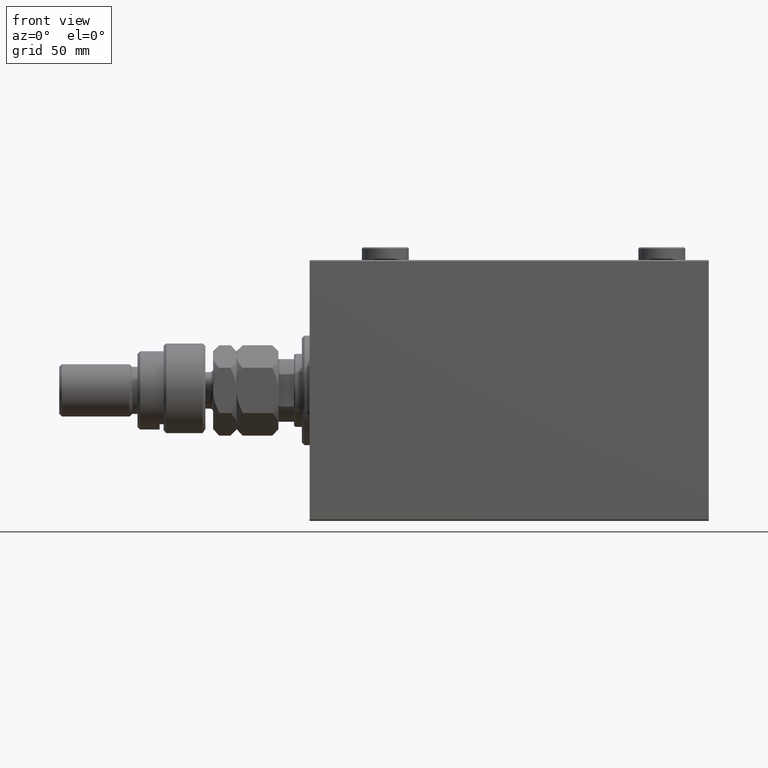
[diagram: clean part render]
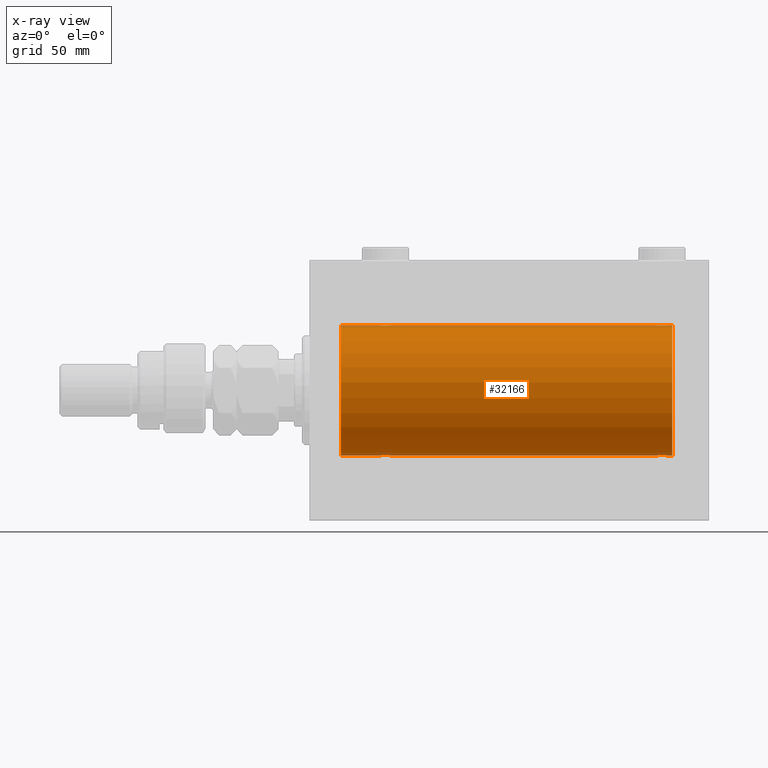
[diagram: x-ray — body ghosted, one internal face saturated and labeled with its STEP entity id]
A machine part, front view, then the same camera in x-ray: the body is ghosted and one INTERNAL B-rep face — a face not visible from any outside direction — is saturated and labeled: STEP entity #32166.
In plain terms, the highlighted cylindrical surface (partial cylindrical patch) has radius 25 mm, axis along (-1, -0, -0).
Its self-contained STEP definition (entity closure, byte-faithful):
#566 = ORIENTED_EDGE ( 'NONE', *, *, #18743, .F. ) ;
#848 = CARTESIAN_POINT ( 'NONE',  ( 133.8927615416158972, -2.247417070759893498, -24.89885693081946982 ) ) ;
#955 = CARTESIAN_POINT ( 'NONE',  ( 134.6705231988572962, -2.483544361357268304, 24.87635491893501793 ) ) ;
#1142 = CARTESIAN_POINT ( 'NONE',  ( 31.50000000000000000, 3.061616978460191625E-15, -25.00000000000000000 ) ) ;
#1177 = VERTEX_POINT ( 'NONE', #41109 ) ;
#1447 = CARTESIAN_POINT ( 'NONE',  ( 30.88412382786471611, -1.651251241585095508, -24.94567559498348785 ) ) ;
#1655 = CARTESIAN_POINT ( 'NONE',  ( 26.50000000000000355, -1.828402720252098442E-15, -25.00000000000000000 ) ) ;
#1940 = CARTESIAN_POINT ( 'NONE',  ( 30.11036796508864555, -2.245863995402895164, -24.89899750494197406 ) ) ;
#2170 = CARTESIAN_POINT ( 'NONE',  ( 136.6512113355911708, -1.884161199660621344, 24.92916496727982789 ) ) ;
#2178 = CARTESIAN_POINT ( 'NONE',  ( 26.50000000000000355, -1.828402720252098442E-15, -25.00000000000000000 ) ) ;
#2349 = CARTESIAN_POINT ( 'NONE',  ( 26.75239748980449050, -1.106703319666882956, 24.97594585958023572 ) ) ;
#2592 = CARTESIAN_POINT ( 'NONE',  ( 28.83293504821939734, -2.499872792855082793, 24.87469871246083031 ) ) ;
#2801 = CARTESIAN_POINT ( 'NONE',  ( 139.0000000000000000, 3.061616997868383043E-15, -25.00000000000000000 ) ) ;
#2831 = LINE ( 'NONE', #21580, #39643 ) ;
#2834 = CARTESIAN_POINT ( 'NONE',  ( 26.51582159942343608, -0.3254210271412222300, 24.99840249400844883 ) ) ;
#2909 = CARTESIAN_POINT ( 'NONE',  ( 136.1103679650886988, -2.245863995402897384, -24.89899750494197761 ) ) ;
#3075 = CARTESIAN_POINT ( 'NONE',  ( 27.74616804575498108, -2.169003991399871989, 24.90589728951138326 ) ) ;
#3315 = CARTESIAN_POINT ( 'NONE',  ( 31.49999999999997158, -0.3305063766663704494, 25.00000000000000000 ) ) ;
#3348 = CARTESIAN_POINT ( 'NONE',  ( 139.0000000000000000, 0.000000000000000000, 25.00000000000000000 ) ) ;
#3388 = CARTESIAN_POINT ( 'NONE',  ( 133.1181404585135226, -1.653834020452942477, -24.94550385189584318 ) ) ;
#4135 = CARTESIAN_POINT ( 'NONE',  ( 133.4746381775692043, -1.987446652080256948, 24.92104239223420592 ) ) ;
#4240 = CARTESIAN_POINT ( 'NONE',  ( 139.0000000000000000, 3.061616997868383043E-15, -25.00000000000000000 ) ) ;
#4598 = CARTESIAN_POINT ( 'NONE',  ( 132.7523974898044798, -1.106703319666880958, 24.97594585958023217 ) ) ;
#4633 = EDGE_LOOP ( 'NONE', ( #566, #17596, #32985, #37698, #13945, #9904, #44039, #31980, #36967, #23888, #14462, #36465 ) ) ;
#5081 = CARTESIAN_POINT ( 'NONE',  ( 137.4334935523974650, -0.6588655613945811895, 24.99312727339969697 ) ) ;
#5326 = CARTESIAN_POINT ( 'NONE',  ( 29.16706495178059910, -2.499872792855075687, -24.87469871246081965 ) ) ;
#5817 = CARTESIAN_POINT ( 'NONE',  ( 26.83172358506042698, -1.255214705003176112, -24.96884293994577320 ) ) ;
#6553 = CARTESIAN_POINT ( 'NONE',  ( 132.5000000000000000, -7.333514367867041916E-15, -25.00000000000000000 ) ) ;
#6716 = CARTESIAN_POINT ( 'NONE',  ( 30.88185954148645251, -1.653834020452943809, 24.94550385189585029 ) ) ;
#7136 = DIRECTION ( 'NONE',  ( -1.000000000000000000, 0.000000000000000000, 0.000000000000000000 ) ) ;
#7220 = LINE ( 'NONE', #3348, #30684 ) ;
#7265 = CARTESIAN_POINT ( 'NONE',  ( 136.9874981583439819, -1.525407911884361534, -24.95379469572361941 ) ) ;
#7494 = CARTESIAN_POINT ( 'NONE',  ( 137.4841784005766101, -0.3254210271412156796, -24.99840249400845238 ) ) ;
#7610 = CARTESIAN_POINT ( 'NONE',  ( 12.00000000000001066, 0.000000000000000000, 0.000000000000000000 ) ) ;
#7646 = CARTESIAN_POINT ( 'NONE',  ( 139.0000000000000000, 0.000000000000000000, 0.000000000000000000 ) ) ;
#7732 = B_SPLINE_CURVE_WITH_KNOTS ( 'NONE', 3,
 ( #41624, #22655, #41856, #37966, #37511, #4598, #34560, #19465, #30903, #18764, #4135, #34318, #18998, #33845, #45049, #955, #30197, #15803, #11665, #41395, #30664, #46487, #35043, #46241, #2170, #8964, #16776, #31145, #24576, #5081, #42586, #31636 ),
 .UNSPECIFIED., .F., .F.,
 ( 4, 2, 2, 2, 2, 2, 2, 2, 2, 2, 2, 2, 2, 2, 2, 4 ),
 ( 0.007821024441662296350, 0.008309723826317906223, 0.008798423210973516095, 0.009287122595629124233, 0.009775821980284732371, 0.01026452136494034224, 0.01075322074959595212, 0.01124192013425156025, 0.01173061951890716839, 0.01221931890356277826, 0.01270801828821838814, 0.01319671767287399627, 0.01368541705752960788, 0.01417411644218521602, 0.01466281582684082589, 0.01564021459615201268 ),
 .UNSPECIFIED. ) ;
#8491 = CARTESIAN_POINT ( 'NONE',  ( 31.42014909220928942, -0.6480119923854186226, -24.99212088949390420 ) ) ;
#8819 = VERTEX_POINT ( 'NONE', #38693 ) ;
#8964 = CARTESIAN_POINT ( 'NONE',  ( 136.8818595414864205, -1.653834020452942477, 24.94550385189585029 ) ) ;
#8972 = CARTESIAN_POINT ( 'NONE',  ( 30.52536182243080631, -1.987446652080256504, -24.92104239223419881 ) ) ;
#9290 = VERTEX_POINT ( 'NONE', #14993 ) ;
#9468 = CARTESIAN_POINT ( 'NONE',  ( 27.01461966282905891, -1.528152964861306584, -24.95362559291379156 ) ) ;
#9900 = VERTEX_POINT ( 'NONE', #18719 ) ;
#9904 = ORIENTED_EDGE ( 'NONE', *, *, #16035, .T. ) ;
#10200 = CARTESIAN_POINT ( 'NONE',  ( 132.7539362090593329, -1.109818057797415047, -24.97580694515542987 ) ) ;
#10369 = CARTESIAN_POINT ( 'NONE',  ( 28.67052319885730682, -2.483544361357271857, 24.87635491893501793 ) ) ;
#10610 = CARTESIAN_POINT ( 'NONE',  ( 30.98538033717094464, -1.528152964861315244, 24.95362559291378801 ) ) ;
#10687 = CARTESIAN_POINT ( 'NONE',  ( 137.3721596940860650, -0.8058335233485393045, -24.98746277938383287 ) ) ;
#11009 = VERTEX_POINT ( 'NONE', #21465 ) ;
#11132 = CARTESIAN_POINT ( 'NONE',  ( 31.50000000000000000, -6.390602579065537931E-15, 25.00000000000000000 ) ) ;
#11665 = CARTESIAN_POINT ( 'NONE',  ( 135.3259657003945620, -2.484007091859763872, 24.87630842367762796 ) ) ;
#11769 = DIRECTION ( 'NONE',  ( -1.000000000000000000, 0.000000000000000000, 0.000000000000000000 ) ) ;
#12553 = DIRECTION ( 'NONE',  ( 0.000000000000000000, 0.000000000000000000, 1.000000000000000000 ) ) ;
#12667 = B_SPLINE_CURVE_WITH_KNOTS ( 'NONE', 3,
 ( #19958, #27502, #35540, #8491, #34571, #34810, #42344, #31400, #1447, #24347, #8972, #23855, #1940, #38696, #39188, #31643, #5326, #42840, #23366, #16784, #46495, #42109, #46741, #13370, #13125, #27994, #9468, #5817, #38217, #19714, #20684, #2178 ),
 .UNSPECIFIED., .F., .F.,
 ( 4, 2, 2, 2, 2, 2, 2, 2, 2, 2, 2, 2, 2, 2, 2, 4 ),
 ( 0.007821024441662299820, 0.008309723826317909692, 0.008798423210973517830, 0.009287122595629124233, 0.009775821980284728902, 0.01026452136494033357, 0.01075322074959593997, 0.01124192013425154464, 0.01173061951890715104, 0.01221931890356275571, 0.01270801828821836038, 0.01319671767287396852, 0.01368541705752957319, 0.01417411644218517959, 0.01466281582684078426, 0.01564021459615199533 ),
 .UNSPECIFIED. ) ;
#12801 = AXIS2_PLACEMENT_3D ( 'NONE', #7646, #11769, #16878 ) ;
#13125 = CARTESIAN_POINT ( 'NONE',  ( 27.34878866440888601, -1.884161199660611796, -24.92916496727982434 ) ) ;
#13370 = CARTESIAN_POINT ( 'NONE',  ( 27.47743225659810307, -1.989585286700239708, -24.92087098724766392 ) ) ;
#13743 = VERTEX_POINT ( 'NONE', #1655 ) ;
#13750 = DIRECTION ( 'NONE',  ( -1.000000000000000000, -0.000000000000000000, -0.000000000000000000 ) ) ;
#13916 = LINE ( 'NONE', #25377, #28543 ) ;
#13928 = EDGE_CURVE ( 'NONE', #26068, #38476, #7220, .T. ) ;
#13945 = ORIENTED_EDGE ( 'NONE', *, *, #47061, .T. ) ;
#14099 = CARTESIAN_POINT ( 'NONE',  ( 134.3543933385136881, -2.420689345803760162, -24.88254961038872892 ) ) ;
#14462 = ORIENTED_EDGE ( 'NONE', *, *, #23797, .T. ) ;
#14537 = DIRECTION ( 'NONE',  ( -1.000000000000000000, -0.000000000000000000, -0.000000000000000000 ) ) ;
#14814 = CARTESIAN_POINT ( 'NONE',  ( 134.8367641036145699, -2.500125740978193178, -24.87467329022544860 ) ) ;
#14993 = CARTESIAN_POINT ( 'NONE',  ( 26.50000000000000355, -1.940558383798427991E-23, 25.00000000000000000 ) ) ;
#15803 = CARTESIAN_POINT ( 'NONE',  ( 135.1632358963854301, -2.500125740978193178, 24.87467329022544504 ) ) ;
#16035 = EDGE_CURVE ( 'NONE', #13743, #11009, #39816, .T. ) ;
#16204 = VECTOR ( 'NONE', #43931, 1000.000000000000000 ) ;
#16463 = CARTESIAN_POINT ( 'NONE',  ( 139.0000000000000000, 0.000000000000000000, 0.000000000000000000 ) ) ;
#16776 = CARTESIAN_POINT ( 'NONE',  ( 136.9853803371709375, -1.528152964861297258, 24.95362559291378446 ) ) ;
#16784 = CARTESIAN_POINT ( 'NONE',  ( 28.35439333851368815, -2.420689345803754833, -24.88254961038873958 ) ) ;
#16878 = DIRECTION ( 'NONE',  ( 0.000000000000000000, 0.000000000000000000, 1.000000000000000000 ) ) ;
#17596 = ORIENTED_EDGE ( 'NONE', *, *, #39802, .T. ) ;
#17683 = CARTESIAN_POINT ( 'NONE',  ( 26.82988709719075970, -1.252049606094339351, 24.96900299967627390 ) ) ;
#17762 = CARTESIAN_POINT ( 'NONE',  ( 133.3487886644088860, -1.884161199660620456, -24.92916496727982079 ) ) ;
#17928 = CARTESIAN_POINT ( 'NONE',  ( 26.50000000000000355, -1.940558383798427991E-23, 25.00000000000000000 ) ) ;
#18062 = B_SPLINE_CURVE_WITH_KNOTS ( 'NONE', 3,
 ( #17928, #43748, #2834, #36680, #20852, #2349, #17683, #33029, #36198, #36441, #47874, #3075, #43252, #47396, #29135, #10369, #2592, #40329, #25244, #28644, #43499, #32545, #40092, #29379, #32060, #6716, #10610, #32789, #47640, #43987, #3315, #44227 ),
 .UNSPECIFIED., .F., .F.,
 ( 4, 2, 2, 2, 2, 2, 2, 2, 2, 2, 2, 2, 2, 2, 2, 4 ),
 ( 0.007821024441662254717, 0.008309723826317859385, 0.008798423210973464054, 0.009287122595629068722, 0.009775821980284673390, 0.01026452136494027806, 0.01075322074959588099, 0.01124192013425148566, 0.01173061951890709033, 0.01221931890356269500, 0.01270801828821829967, 0.01319671767287390260, 0.01368541705752950727, 0.01417411644218511194, 0.01466281582684071660, 0.01564021459615192594 ),
 .UNSPECIFIED. ) ;
#18240 = CARTESIAN_POINT ( 'NONE',  ( 135.6490439016909875, -2.419770561643898255, -24.88263927071751169 ) ) ;
#18476 = CARTESIAN_POINT ( 'NONE',  ( 137.1701129028092510, -1.252049606094334022, -24.96900299967627390 ) ) ;
#18719 = CARTESIAN_POINT ( 'NONE',  ( 132.5000000000000000, -7.333514367867041916E-15, -25.00000000000000000 ) ) ;
#18743 = EDGE_CURVE ( 'NONE', #29834, #8819, #26830, .T. ) ;
#18764 = CARTESIAN_POINT ( 'NONE',  ( 133.3461666385066167, -1.881857718844717642, 24.92933960374833546 ) ) ;
#18998 = CARTESIAN_POINT ( 'NONE',  ( 133.8896320349113580, -2.245863995402900049, 24.89899750494197050 ) ) ;
#19103 = DIRECTION ( 'NONE',  ( -1.000000000000000000, -0.000000000000000000, -0.000000000000000000 ) ) ;
#19209 = AXIS2_PLACEMENT_3D ( 'NONE', #16463, #46659, #12553 ) ;
#19251 = VERTEX_POINT ( 'NONE', #37441 ) ;
#19465 = CARTESIAN_POINT ( 'NONE',  ( 133.0125018416559328, -1.525407911884356205, 24.95379469572361586 ) ) ;
#19714 = CARTESIAN_POINT ( 'NONE',  ( 26.56650644760253499, -0.6588655613945862966, -24.99312727339971119 ) ) ;
#19958 = CARTESIAN_POINT ( 'NONE',  ( 31.50000000000000000, 3.061616978460191625E-15, -25.00000000000000000 ) ) ;
#20364 = FACE_OUTER_BOUND ( 'NONE', #4633, .T. ) ;
#20684 = CARTESIAN_POINT ( 'NONE',  ( 26.50000000000001066, -0.3305063766663757785, -25.00000000000000355 ) ) ;
#20852 = CARTESIAN_POINT ( 'NONE',  ( 26.62784030591392437, -0.8058335233485459659, 24.98746277938383287 ) ) ;
#21004 = VERTEX_POINT ( 'NONE', #1142 ) ;
#21465 = CARTESIAN_POINT ( 'NONE',  ( 12.00000000000001066, 3.061616997868383043E-15, -25.00000000000000000 ) ) ;
#21580 = CARTESIAN_POINT ( 'NONE',  ( 139.0000000000000000, 0.000000000000000000, 25.00000000000000000 ) ) ;
#22137 = CARTESIAN_POINT ( 'NONE',  ( 135.1670649517805884, -2.499872792855077464, -24.87469871246082320 ) ) ;
#22375 = CARTESIAN_POINT ( 'NONE',  ( 133.4774322565981208, -1.989585286700252809, -24.92087098724766037 ) ) ;
#22655 = CARTESIAN_POINT ( 'NONE',  ( 132.5000000000000000, -0.1631750940176186493, 25.00000000000001066 ) ) ;
#23289 = CYLINDRICAL_SURFACE ( 'NONE', #19209, 25.00000000000000000 ) ;
#23336 = EDGE_CURVE ( 'NONE', #9900, #21004, #37616, .T. ) ;
#23366 = CARTESIAN_POINT ( 'NONE',  ( 28.67403429960539896, -2.484007091859758543, -24.87630842367763151 ) ) ;
#23797 = EDGE_CURVE ( 'NONE', #26068, #19251, #7732, .T. ) ;
#23855 = CARTESIAN_POINT ( 'NONE',  ( 30.25383195424503313, -2.169003991399864884, -24.90589728951138682 ) ) ;
#23888 = ORIENTED_EDGE ( 'NONE', *, *, #13928, .F. ) ;
#23962 = B_SPLINE_CURVE_WITH_KNOTS ( 'NONE', 3,
 ( #26040, #36274, #7494, #47474, #10687, #40646, #18476, #7265, #25564, #25323, #29454, #33334, #2909, #43574, #18240, #28970, #22137, #14814, #33100, #14099, #36987, #848, #29683, #22375, #17762, #3388, #43824, #47946, #10200, #44539, #37224, #6553 ),
 .UNSPECIFIED., .F., .F.,
 ( 4, 2, 2, 2, 2, 2, 2, 2, 2, 2, 2, 2, 2, 2, 2, 4 ),
 ( 0.007821024441662296350, 0.008309723826317904488, 0.008798423210973514361, 0.009287122595629122498, 0.009775821980284732371, 0.01026452136494034051, 0.01075322074959594865, 0.01124192013425155852, 0.01173061951890716666, 0.01221931890356277653, 0.01270801828821838467, 0.01319671767287399280, 0.01368541705752960094, 0.01417411644218521082, 0.01466281582684082069, 0.01564021459615200574 ),
 .UNSPECIFIED. ) ;
#24347 = CARTESIAN_POINT ( 'NONE',  ( 30.65383336149337623, -1.881857718844709870, -24.92933960374833191 ) ) ;
#24576 = CARTESIAN_POINT ( 'NONE',  ( 137.2460637909406955, -1.109818057797409718, 24.97580694515542632 ) ) ;
#24579 = EDGE_CURVE ( 'NONE', #9290, #1177, #13916, .T. ) ;
#24850 = EDGE_CURVE ( 'NONE', #41607, #9900, #23962, .T. ) ;
#25244 = CARTESIAN_POINT ( 'NONE',  ( 29.32596570039459394, -2.484007091859766092, 24.87630842367763506 ) ) ;
#25323 = CARTESIAN_POINT ( 'NONE',  ( 136.6538333614933833, -1.881857718844715199, -24.92933960374833546 ) ) ;
#25377 = CARTESIAN_POINT ( 'NONE',  ( 139.0000000000000000, 0.000000000000000000, 25.00000000000000000 ) ) ;
#25564 = CARTESIAN_POINT ( 'NONE',  ( 136.8841238278646983, -1.651251241585101059, -24.94567559498349141 ) ) ;
#26040 = CARTESIAN_POINT ( 'NONE',  ( 137.5000000000000000, 3.061616978453486307E-15, -25.00000000000000000 ) ) ;
#26068 = VERTEX_POINT ( 'NONE', #47891 ) ;
#26830 = CIRCLE ( 'NONE', #12801, 25.00000000000000000 ) ;
#27502 = CARTESIAN_POINT ( 'NONE',  ( 31.49999999999999289, -0.1631750940176170117, -25.00000000000000711 ) ) ;
#27886 = EDGE_CURVE ( 'NONE', #8819, #19251, #2831, .T. ) ;
#27994 = CARTESIAN_POINT ( 'NONE',  ( 27.11814045851354393, -1.653834020452933151, -24.94550385189584674 ) ) ;
#28543 = VECTOR ( 'NONE', #33623, 1000.000000000000000 ) ;
#28640 = DIRECTION ( 'NONE',  ( -1.000000000000000000, -0.000000000000000000, -0.000000000000000000 ) ) ;
#28644 = CARTESIAN_POINT ( 'NONE',  ( 29.64560666148631540, -2.420689345803762382, 24.88254961038873958 ) ) ;
#28830 = CARTESIAN_POINT ( 'NONE',  ( 139.0000000000000000, 3.061616997868383043E-15, -25.00000000000000000 ) ) ;
#28970 = CARTESIAN_POINT ( 'NONE',  ( 135.3294768011427323, -2.483544361357263419, -24.87635491893501083 ) ) ;
#29135 = CARTESIAN_POINT ( 'NONE',  ( 28.35095609830903385, -2.419770561643910245, 24.88263927071751169 ) ) ;
#29379 = CARTESIAN_POINT ( 'NONE',  ( 30.52256774340189338, -1.989585286700249256, 24.92087098724766747 ) ) ;
#29454 = CARTESIAN_POINT ( 'NONE',  ( 136.5253618224307957, -1.987446652080256060, -24.92104239223419881 ) ) ;
#29683 = CARTESIAN_POINT ( 'NONE',  ( 133.7491597607594542, -2.170728182476725276, -24.90574631553725027 ) ) ;
#29834 = VERTEX_POINT ( 'NONE', #37405 ) ;
#30197 = CARTESIAN_POINT ( 'NONE',  ( 134.8329350482193831, -2.499872792855079240, 24.87469871246083031 ) ) ;
#30664 = CARTESIAN_POINT ( 'NONE',  ( 135.8043566091630510, -2.372734907014173000, 24.88722742718433878 ) ) ;
#30684 = VECTOR ( 'NONE', #14537, 1000.000000000000000 ) ;
#30903 = CARTESIAN_POINT ( 'NONE',  ( 133.1158761721353301, -1.651251241585103724, 24.94567559498349141 ) ) ;
#31145 = CARTESIAN_POINT ( 'NONE',  ( 137.1682764149395837, -1.255214705003166564, 24.96884293994578385 ) ) ;
#31400 = CARTESIAN_POINT ( 'NONE',  ( 30.98749815834397481, -1.525407911884360868, -24.95379469572361941 ) ) ;
#31636 = CARTESIAN_POINT ( 'NONE',  ( 137.5000000000000000, 1.404322005998729010E-15, 25.00000000000000000 ) ) ;
#31643 = CARTESIAN_POINT ( 'NONE',  ( 29.32947680114268962, -2.483544361357264751, -24.87635491893502149 ) ) ;
#31980 = ORIENTED_EDGE ( 'NONE', *, *, #24579, .F. ) ;
#32060 = CARTESIAN_POINT ( 'NONE',  ( 30.65121133559111755, -1.884161199660622454, 24.92916496727982434 ) ) ;
#32166 = ADVANCED_FACE ( 'NONE', ( #20364 ), #23289, .F. ) ;
#32242 = LINE ( 'NONE', #28830, #16204 ) ;
#32545 = CARTESIAN_POINT ( 'NONE',  ( 30.10723845838409929, -2.247417070759899271, 24.89885693081946272 ) ) ;
#32789 = CARTESIAN_POINT ( 'NONE',  ( 31.16827641493957657, -1.255214705003185438, 24.96884293994578385 ) ) ;
#32985 = ORIENTED_EDGE ( 'NONE', *, *, #24850, .T. ) ;
#33029 = CARTESIAN_POINT ( 'NONE',  ( 27.01250184165601453, -1.525407911884366863, 24.95379469572361941 ) ) ;
#33100 = CARTESIAN_POINT ( 'NONE',  ( 134.6740342996053812, -2.484007091859762983, -24.87630842367762796 ) ) ;
#33334 = CARTESIAN_POINT ( 'NONE',  ( 136.2538319542450154, -2.169003991399864884, -24.90589728951138682 ) ) ;
#33623 = DIRECTION ( 'NONE',  ( -1.000000000000000000, -0.000000000000000000, -0.000000000000000000 ) ) ;
#33752 = EDGE_CURVE ( 'NONE', #11009, #1177, #48079, .T. ) ;
#33845 = CARTESIAN_POINT ( 'NONE',  ( 134.1921165759419239, -2.371528299825747421, 24.88734287464370709 ) ) ;
#34318 = CARTESIAN_POINT ( 'NONE',  ( 133.7461680457549846, -2.169003991399866216, 24.90589728951138682 ) ) ;
#34560 = CARTESIAN_POINT ( 'NONE',  ( 132.8298870971907490, -1.252049606094326695, 24.96900299967627390 ) ) ;
#34571 = CARTESIAN_POINT ( 'NONE',  ( 31.37215969408608274, -0.8058335233485438565, -24.98746277938383997 ) ) ;
#34810 = CARTESIAN_POINT ( 'NONE',  ( 31.24760251019551305, -1.106703319666880514, -24.97594585958023927 ) ) ;
#35043 = CARTESIAN_POINT ( 'NONE',  ( 136.2508402392405173, -2.170728182476725276, 24.90574631553724672 ) ) ;
#35540 = CARTESIAN_POINT ( 'NONE',  ( 31.48417840057656747, -0.3254210271412188993, -24.99840249400844883 ) ) ;
#36198 = CARTESIAN_POINT ( 'NONE',  ( 27.11587617213529100, -1.651251241585102614, 24.94567559498349141 ) ) ;
#36274 = CARTESIAN_POINT ( 'NONE',  ( 137.5000000000000000, -0.1631750940176147080, -25.00000000000000711 ) ) ;
#36441 = CARTESIAN_POINT ( 'NONE',  ( 27.34616663850662377, -1.881857718844717642, 24.92933960374833902 ) ) ;
#36465 = ORIENTED_EDGE ( 'NONE', *, *, #27886, .F. ) ;
#36680 = CARTESIAN_POINT ( 'NONE',  ( 26.57985090779070703, -0.6480119923854221753, 24.99212088949390420 ) ) ;
#36967 = ORIENTED_EDGE ( 'NONE', *, *, #45354, .T. ) ;
#36987 = CARTESIAN_POINT ( 'NONE',  ( 134.1956433908369775, -2.372734907014170336, -24.88722742718433167 ) ) ;
#37068 = CARTESIAN_POINT ( 'NONE',  ( 137.5000000000000000, 3.061616978453486307E-15, -25.00000000000000000 ) ) ;
#37224 = CARTESIAN_POINT ( 'NONE',  ( 132.5000000000000284, -0.3305063766663819402, -24.99999999999999645 ) ) ;
#37405 = CARTESIAN_POINT ( 'NONE',  ( 139.0000000000000000, 3.061616997868383043E-15, -25.00000000000000000 ) ) ;
#37441 = CARTESIAN_POINT ( 'NONE',  ( 137.5000000000000000, 1.404322005998729010E-15, 25.00000000000000000 ) ) ;
#37511 = CARTESIAN_POINT ( 'NONE',  ( 132.6278403059139634, -0.8058335233485443005, 24.98746277938383287 ) ) ;
#37616 = LINE ( 'NONE', #4240, #42493 ) ;
#37698 = ORIENTED_EDGE ( 'NONE', *, *, #23336, .T. ) ;
#37966 = CARTESIAN_POINT ( 'NONE',  ( 132.5798509077907283, -0.6480119923854213981, 24.99212088949391131 ) ) ;
#38217 = CARTESIAN_POINT ( 'NONE',  ( 26.75393620905933645, -1.109818057797413715, -24.97580694515542277 ) ) ;
#38476 = VERTEX_POINT ( 'NONE', #11132 ) ;
#38693 = CARTESIAN_POINT ( 'NONE',  ( 139.0000000000000000, 0.000000000000000000, 25.00000000000000000 ) ) ;
#38696 = CARTESIAN_POINT ( 'NONE',  ( 29.80788342405805835, -2.371528299825740760, -24.88734287464371064 ) ) ;
#39188 = CARTESIAN_POINT ( 'NONE',  ( 29.64904390169096970, -2.419770561643902695, -24.88263927071750459 ) ) ;
#39643 = VECTOR ( 'NONE', #28640, 1000.000000000000000 ) ;
#39802 = EDGE_CURVE ( 'NONE', #29834, #41607, #32242, .T. ) ;
#39816 = LINE ( 'NONE', #2801, #40062 ) ;
#40062 = VECTOR ( 'NONE', #13750, 1000.000000000000000 ) ;
#40092 = CARTESIAN_POINT ( 'NONE',  ( 30.25084023924054932, -2.170728182476723500, 24.90574631553725027 ) ) ;
#40329 = CARTESIAN_POINT ( 'NONE',  ( 29.16323589638542302, -2.500125740978195843, 24.87467329022545215 ) ) ;
#40646 = CARTESIAN_POINT ( 'NONE',  ( 137.2476025101955202, -1.106703319666876295, -24.97594585958023927 ) ) ;
#41058 = AXIS2_PLACEMENT_3D ( 'NONE', #7610, #7136, #44409 ) ;
#41109 = CARTESIAN_POINT ( 'NONE',  ( 12.00000000000001066, 0.000000000000000000, 25.00000000000000000 ) ) ;
#41395 = CARTESIAN_POINT ( 'NONE',  ( 135.6456066614862834, -2.420689345803761938, 24.88254961038872892 ) ) ;
#41607 = VERTEX_POINT ( 'NONE', #37068 ) ;
#41624 = CARTESIAN_POINT ( 'NONE',  ( 132.5000000000000000, -1.941505016884693205E-23, 25.00000000000000000 ) ) ;
#41856 = CARTESIAN_POINT ( 'NONE',  ( 132.5158215994234752, -0.3254210271412208977, 24.99840249400844527 ) ) ;
#42109 = CARTESIAN_POINT ( 'NONE',  ( 27.89276154161590426, -2.247417070759891278, -24.89885693081946272 ) ) ;
#42344 = CARTESIAN_POINT ( 'NONE',  ( 31.17011290280924740, -1.252049606094333578, -24.96900299967627390 ) ) ;
#42493 = VECTOR ( 'NONE', #19103, 1000.000000000000000 ) ;
#42586 = CARTESIAN_POINT ( 'NONE',  ( 137.4999999999999716, -0.3305063766663748903, 24.99999999999999289 ) ) ;
#42840 = CARTESIAN_POINT ( 'NONE',  ( 28.83676410361456632, -2.500125740978188738, -24.87467329022545215 ) ) ;
#43252 = CARTESIAN_POINT ( 'NONE',  ( 27.88963203491136156, -2.245863995402901381, 24.89899750494197050 ) ) ;
#43499 = CARTESIAN_POINT ( 'NONE',  ( 29.80435660916301899, -2.372734907014176553, 24.88722742718433878 ) ) ;
#43574 = CARTESIAN_POINT ( 'NONE',  ( 135.8078834240581330, -2.371528299825745645, -24.88734287464372130 ) ) ;
#43748 = CARTESIAN_POINT ( 'NONE',  ( 26.50000000000000711, -0.1631750940176204812, 25.00000000000000711 ) ) ;
#43824 = CARTESIAN_POINT ( 'NONE',  ( 133.0146196628290340, -1.528152964861315244, -24.95362559291378801 ) ) ;
#43931 = DIRECTION ( 'NONE',  ( -1.000000000000000000, -0.000000000000000000, -0.000000000000000000 ) ) ;
#43987 = CARTESIAN_POINT ( 'NONE',  ( 31.43349355239747567, -0.6588655613945917366, 24.99312727339970053 ) ) ;
#44039 = ORIENTED_EDGE ( 'NONE', *, *, #33752, .T. ) ;
#44227 = CARTESIAN_POINT ( 'NONE',  ( 31.50000000000000000, -6.390602579065537931E-15, 25.00000000000000000 ) ) ;
#44409 = DIRECTION ( 'NONE',  ( 0.000000000000000000, 0.000000000000000000, 1.000000000000000000 ) ) ;
#44539 = CARTESIAN_POINT ( 'NONE',  ( 132.5665064476025066, -0.6588655613945854084, -24.99312727339970763 ) ) ;
#45049 = CARTESIAN_POINT ( 'NONE',  ( 134.3509560983090694, -2.419770561643906248, 24.88263927071751169 ) ) ;
#45354 = EDGE_CURVE ( 'NONE', #9290, #38476, #18062, .T. ) ;
#46241 = CARTESIAN_POINT ( 'NONE',  ( 136.5225677434018792, -1.989585286700252809, 24.92087098724766747 ) ) ;
#46487 = CARTESIAN_POINT ( 'NONE',  ( 136.1072384583841028, -2.247417070759893942, 24.89885693081946627 ) ) ;
#46495 = CARTESIAN_POINT ( 'NONE',  ( 28.19564339083697746, -2.372734907014167671, -24.88722742718433167 ) ) ;
#46659 = DIRECTION ( 'NONE',  ( -1.000000000000000000, -0.000000000000000000, -0.000000000000000000 ) ) ;
#46741 = CARTESIAN_POINT ( 'NONE',  ( 27.74915976075944712, -2.170728182476714174, -24.90574631553725027 ) ) ;
#47061 = EDGE_CURVE ( 'NONE', #21004, #13743, #12667, .T. ) ;
#47396 = CARTESIAN_POINT ( 'NONE',  ( 28.19211657594194520, -2.371528299825748309, 24.88734287464370709 ) ) ;
#47474 = CARTESIAN_POINT ( 'NONE',  ( 137.4201490922092717, -0.6480119923854158470, -24.99212088949390775 ) ) ;
#47640 = CARTESIAN_POINT ( 'NONE',  ( 31.24606379094066000, -1.109818057797419932, 24.97580694515541921 ) ) ;
#47874 = CARTESIAN_POINT ( 'NONE',  ( 27.47463817756919369, -1.987446652080264720, 24.92104239223420592 ) ) ;
#47891 = CARTESIAN_POINT ( 'NONE',  ( 132.5000000000000000, -1.941505016884693205E-23, 25.00000000000000000 ) ) ;
#47946 = CARTESIAN_POINT ( 'NONE',  ( 132.8317235850605016, -1.255214705003186548, -24.96884293994578741 ) ) ;
#48079 = CIRCLE ( 'NONE', #41058, 25.00000000000000000 ) ;